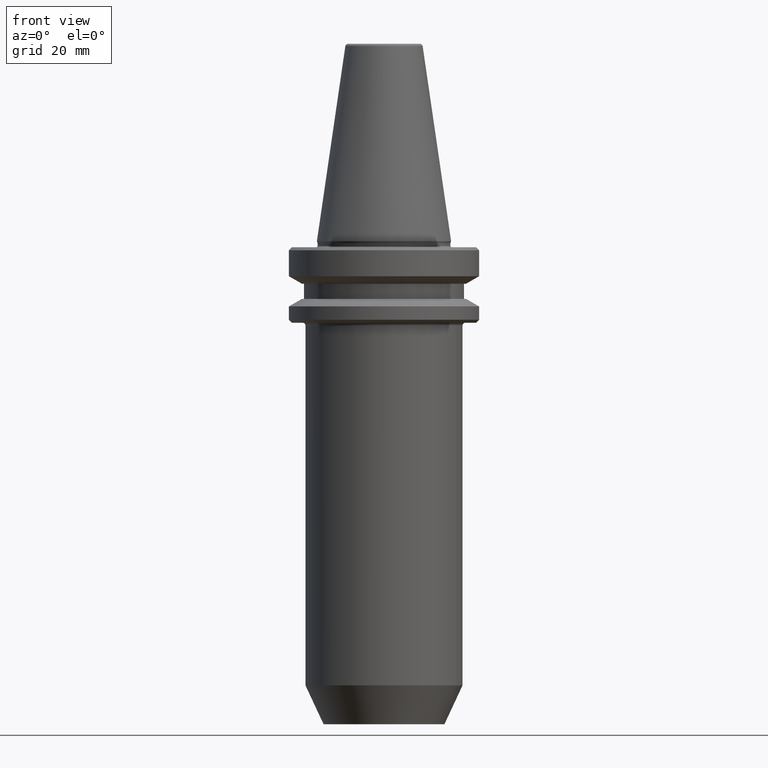
[diagram: clean part render]
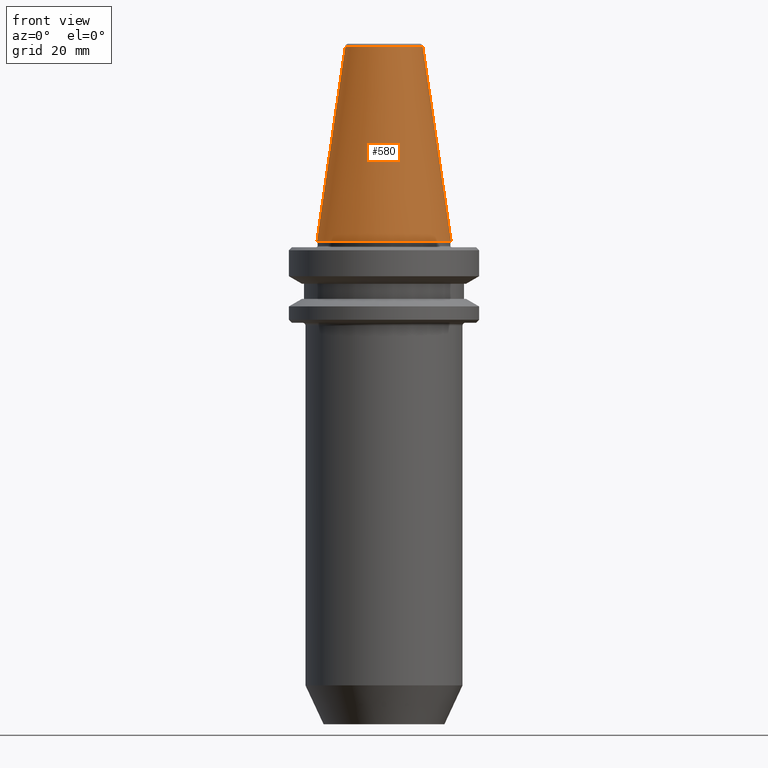
[diagram: same view with one face highlighted and labeled with its STEP entity id]
A machine part, front view. The second image highlights one B-rep face of the part: STEP entity #580.
In plain terms, the highlighted conical surface has half-angle 8.297 deg.
Its self-contained STEP definition (entity closure, byte-faithful):
#13 = AXIS2_PLACEMENT_3D ( 'NONE', #1035, #572, #51 ) ;
#23 = DIRECTION ( 'NONE',  ( -1.000000000000000000, 0.0000000000000000000, 0.0000000000000000000 ) ) ;
#51 = DIRECTION ( 'NONE',  ( 1.000000000000000000, 0.0000000000000000000, 0.0000000000000000000 ) ) ;
#64 = CARTESIAN_POINT ( 'NONE',  ( -22.22499999999971700, 0.0000000000000000000, 0.6887132116596417200 ) ) ;
#77 = CARTESIAN_POINT ( 'NONE',  ( -22.22499999999971700, 2.721777511104957700E-015, 0.6887132116596417200 ) ) ;
#164 = LINE ( 'NONE', #64, #192 ) ;
#192 = VECTOR ( 'NONE', #294, 999.9999999999998900 ) ;
#193 = CIRCLE ( 'NONE', #13, 12.81220206925715000 ) ;
#220 = ORIENTED_EDGE ( 'NONE', *, *, #597, .F. ) ;
#239 = CIRCLE ( 'NONE', #989, 22.22499999999971700 ) ;
#280 = DIRECTION ( 'NONE',  ( -0.0000000000000000000, -0.0000000000000000000, 1.000000000000000000 ) ) ;
#294 = DIRECTION ( 'NONE',  ( -0.1443081888881784800, 0.0000000000000000000, -0.9895327920891828800 ) ) ;
#344 = VECTOR ( 'NONE', #863, 999.9999999999998900 ) ;
#346 = CARTESIAN_POINT ( 'NONE',  ( 0.0000000000000000000, 0.0000000000000000000, 0.6887132116596417200 ) ) ;
#348 = FACE_OUTER_BOUND ( 'NONE', #836, .T. ) ;
#354 = CARTESIAN_POINT ( 'NONE',  ( 22.22499999999971700, 2.721777511104957700E-015, 0.6887132116596417200 ) ) ;
#363 = CONICAL_SURFACE ( 'NONE', #804, 22.22499999999971700, 0.1448138077623186700 ) ;
#399 = LINE ( 'NONE', #354, #344 ) ;
#503 = VERTEX_POINT ( 'NONE', #77 ) ;
#545 = DIRECTION ( 'NONE',  ( 0.0000000000000000000, 0.0000000000000000000, -1.000000000000000000 ) ) ;
#549 = ORIENTED_EDGE ( 'NONE', *, *, #885, .T. ) ;
#554 = CARTESIAN_POINT ( 'NONE',  ( 22.22499999999971700, 0.0000000000000000000, 0.6887132116596417200 ) ) ;
#572 = DIRECTION ( 'NONE',  ( -0.0000000000000000000, -0.0000000000000000000, 1.000000000000000000 ) ) ;
#580 = ADVANCED_FACE ( 'NONE', ( #348 ), #363, .T. ) ;
#597 = EDGE_CURVE ( 'NONE', #859, #624, #399, .T. ) ;
#624 = VERTEX_POINT ( 'NONE', #554 ) ;
#638 = ORIENTED_EDGE ( 'NONE', *, *, #695, .T. ) ;
#652 = CARTESIAN_POINT ( 'NONE',  ( 12.81220206925713600, 0.0000000000000000000, 65.23302140054848100 ) ) ;
#695 = EDGE_CURVE ( 'NONE', #503, #624, #239, .T. ) ;
#725 = ORIENTED_EDGE ( 'NONE', *, *, #773, .F. ) ;
#732 = CARTESIAN_POINT ( 'NONE',  ( -12.81220206925713600, 1.569042225414484800E-015, 65.23302140054848100 ) ) ;
#773 = EDGE_CURVE ( 'NONE', #883, #859, #193, .T. ) ;
#803 = CARTESIAN_POINT ( 'NONE',  ( 0.0000000000000000000, 0.0000000000000000000, 0.6887132116596417200 ) ) ;
#804 = AXIS2_PLACEMENT_3D ( 'NONE', #346, #545, #23 ) ;
#836 = EDGE_LOOP ( 'NONE', ( #220, #725, #549, #638 ) ) ;
#859 = VERTEX_POINT ( 'NONE', #652 ) ;
#863 = DIRECTION ( 'NONE',  ( 0.1443081888881784800, 1.767265616126594100E-017, -0.9895327920891828800 ) ) ;
#875 = DIRECTION ( 'NONE',  ( 1.000000000000000000, 0.0000000000000000000, 0.0000000000000000000 ) ) ;
#883 = VERTEX_POINT ( 'NONE', #732 ) ;
#885 = EDGE_CURVE ( 'NONE', #883, #503, #164, .T. ) ;
#989 = AXIS2_PLACEMENT_3D ( 'NONE', #803, #280, #875 ) ;
#1035 = CARTESIAN_POINT ( 'NONE',  ( 0.0000000000000000000, 0.0000000000000000000, 65.23302140054848100 ) ) ;